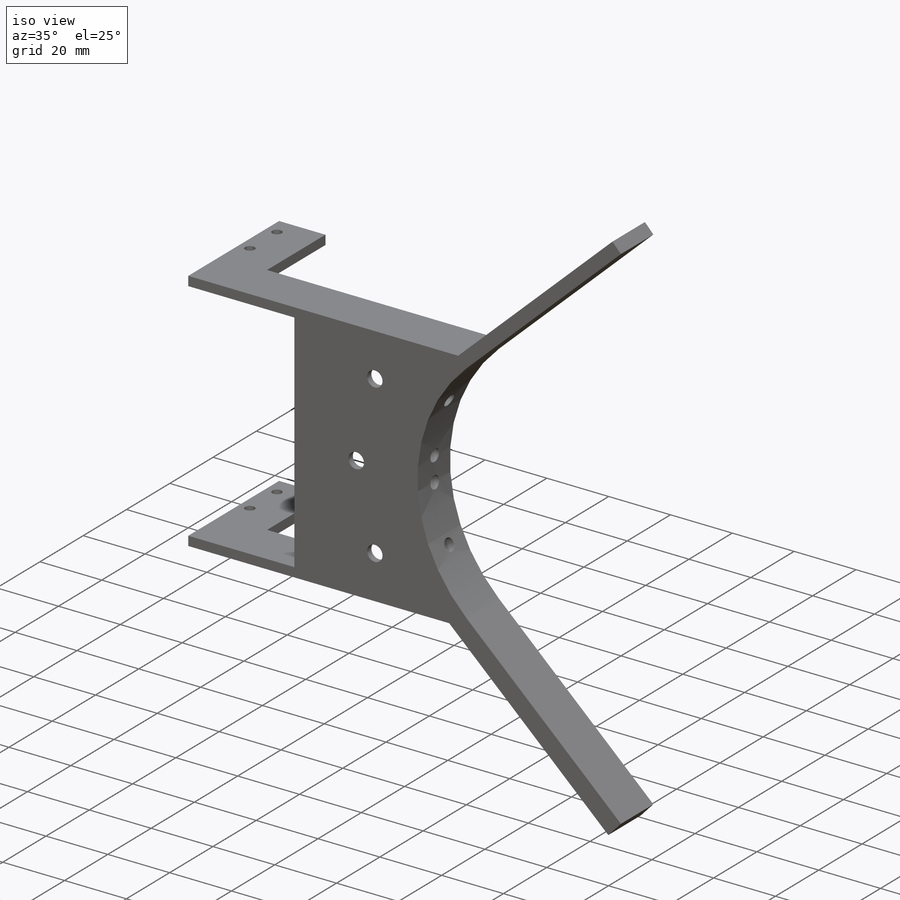
[diagram: iso view]
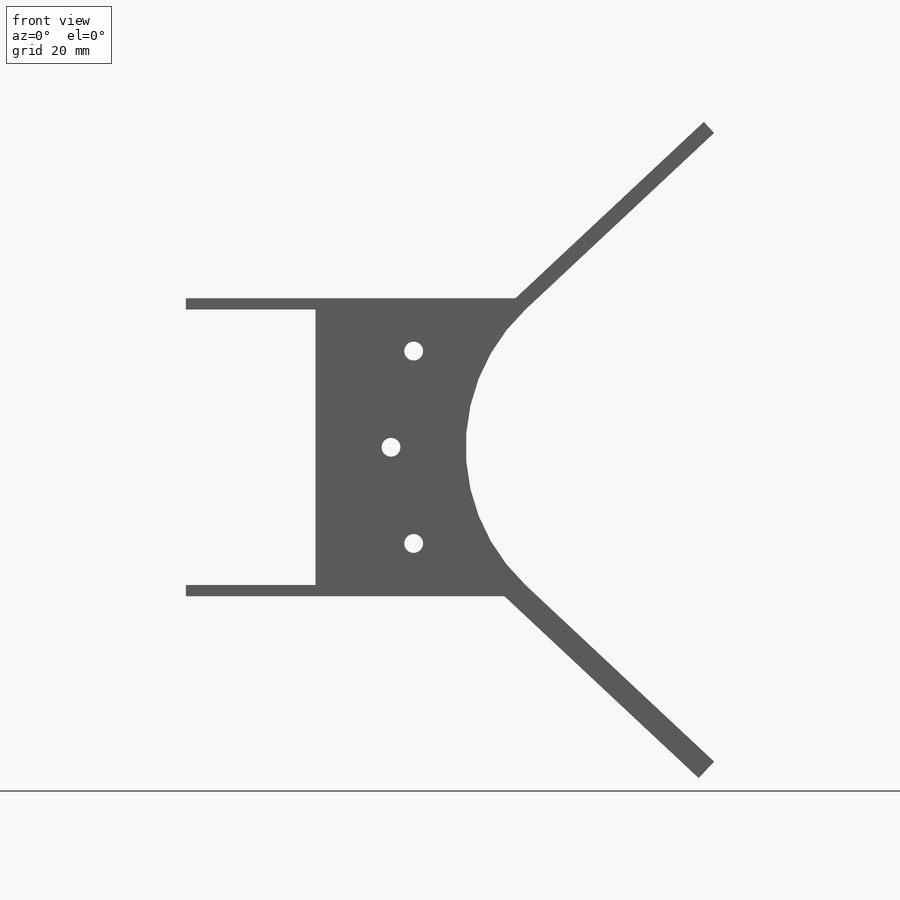
[diagram: front view]
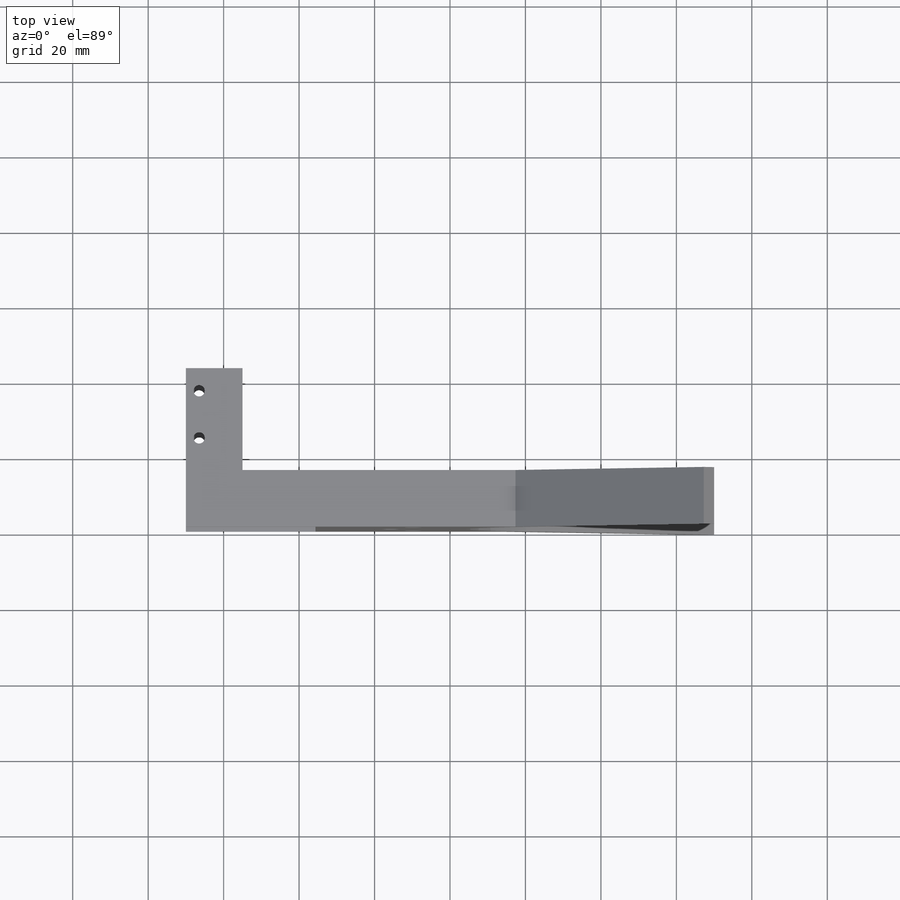
[diagram: top view]
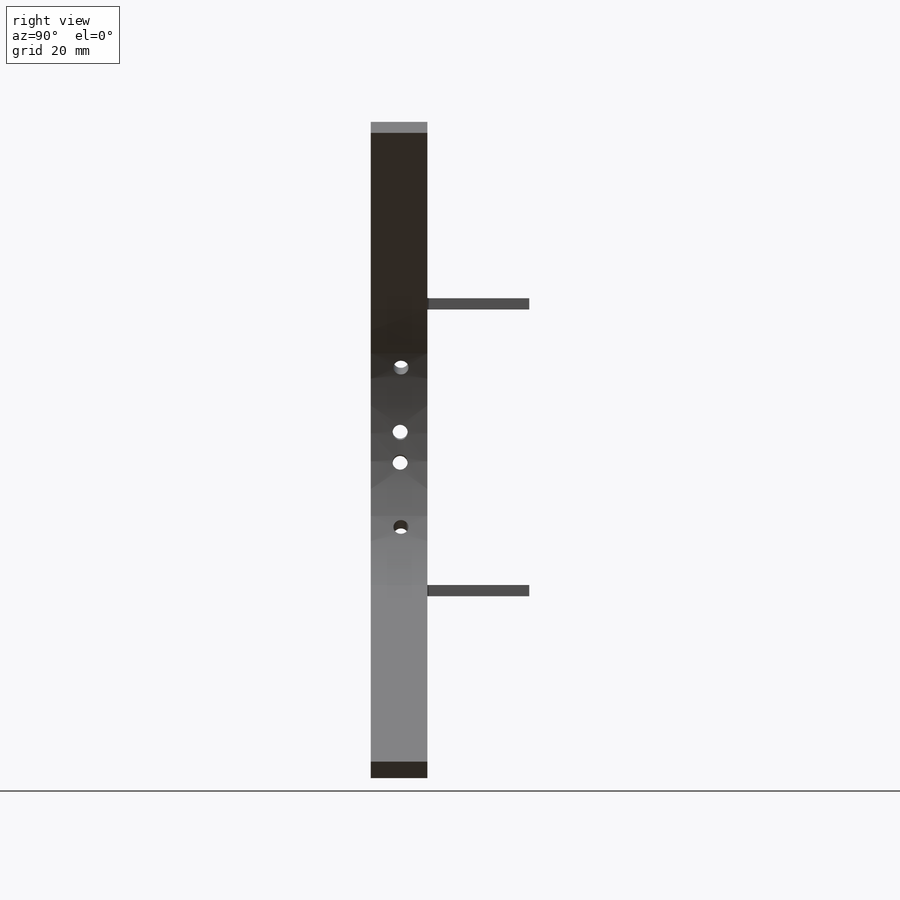
[diagram: right view]
SOLIDWORKS PART (.sldprt)
format: sldprt  version: not decoded by parser v0  size: 337,408 bytes
history: native  units: mm
features: sketch x10, extrude x4, plane x4, mirror x4, sweep x2, cut_extrude x2, material x1 (+13 scaffold rows collapsed)
feature tree (40):
  scaffold x13  (default folders/planes/origin — collapsed)
  material  "Material <not specified>"
  sketch  "Sketch1"  dims[c1.D8=~10.731313mm c1.D9=~10.731313mm c1.D10=3.0mm c1.D11=3.0mm c1.D1=42.0mm c1.D2=15.0mm c1.D3=75.0mm c1.D4=10.0mm c1.D5=~10.000009mm c2.D4=~42.460717mm c2.D5=0.0mm c3.D4=0.0mm c3.D6=15.0mm c3.D7=12.5mm c3.D8=3.5mm c3.D9=6.0mm c3.D12=12.5mm]
  extrude  "Boss-Extrude1"  Depth=3mm
  plane  "Plane1"  Offset=39.5mm
  mirror  "Mirror7"
  sketch  "Sketch3"  dims[D1=50.0mm D5=56.0mm D2=50.0mm D3=4.0mm D4=~17.107479mm]
  extrude  "Boss-Extrude2"  [1 undecoded]
  sketch  "Sketch4"  dims[D1=50.0mm]
  extrude  "Boss-Extrude4"  Depth=2mm
  plane  "Plane2"  Offset=6mm
  sketch  "Sketch5"  dims[c1.D3=5.0mm c1.D1=~54.625927mm c2.D1=5.0deg c2.D2=~62.660555mm c3.D2=25.0deg]
  plane  "Plane3"
  sketch  "Sketch8"  dims[D1=4.0mm]
  sweep  "Cut-Sweep1"
  sketch  "Sketch12"  dims[c1.D1=~54.599978mm c2.D1=5.0deg]
  plane  "Plane4"
  sketch  "Sketch13"  dims[D1=4.0mm]
  sweep  "Cut-Sweep2"
  mirror  "Mirror8"
  sketch  "Sketch14"  dims[D1=5.0mm D2=20.0mm D3=0.0mm]
  cut_extrude  "Cut-Extrude1"  [1 undecoded]
  sketch  "Sketch15"  dims[c1.D1=5.0mm c1.D2=3.0mm c1.D3=5.0mm c2.D2=15.0mm c2.D3=20.0mm]
  extrude  "Boss-Extrude5"  Depth=10mm
  mirror  "Mirror9"
  sketch  "Sketch16"  dims[D1=5.0mm D2=26.0mm D3=11.0mm]
  cut_extrude  "Cut-Extrude2"  Depth=10mm
  mirror  "Mirror10"
decode coverage: 14 of 22 modeling features carry decoded parameters
note: ~ marks probable driven/reference dimensions
note: 2 parameter values undecoded
note: suppression state not decoded; provenance and decode notes live in map.json
